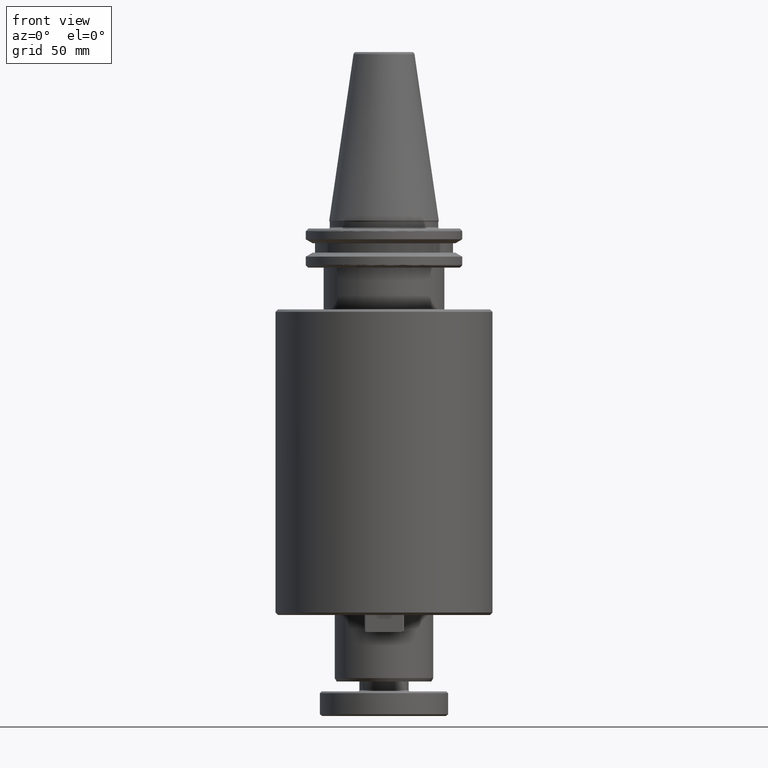
[diagram: clean part render]
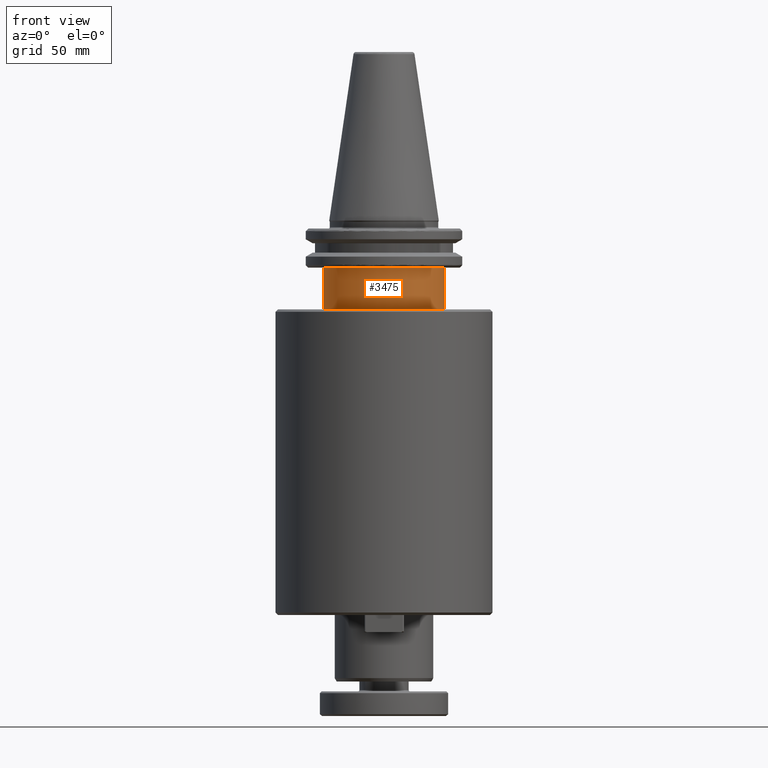
[diagram: same view with one face highlighted and labeled with its STEP entity id]
A machine part, front view. The second image highlights one B-rep face of the part: STEP entity #3475.
In plain terms, the highlighted cylindrical surface (partial cylindrical patch) has radius 24.5 mm, axis along (0, 0, 1).
Its self-contained STEP definition (entity closure, byte-faithful):
#204 = CARTESIAN_POINT ( 'NONE',  ( 24.50000000000000000, 0.0000000000000000000, -19.10000000000000500 ) ) ;
#216 = CARTESIAN_POINT ( 'NONE',  ( 0.0000000000000000000, 0.0000000000000000000, 82.95681253582424100 ) ) ;
#266 = CIRCLE ( 'NONE', #317, 24.50000000000000000 ) ;
#308 = VERTEX_POINT ( 'NONE', #1469 ) ;
#317 = AXIS2_PLACEMENT_3D ( 'NONE', #1324, #1320, #1314 ) ;
#515 = DIRECTION ( 'NONE',  ( 0.0000000000000000000, 0.0000000000000000000, 1.000000000000000000 ) ) ;
#558 = EDGE_CURVE ( 'NONE', #308, #3929, #4140, .T. ) ;
#584 = LINE ( 'NONE', #3132, #3155 ) ;
#903 = DIRECTION ( 'NONE',  ( 0.0000000000000000000, 0.0000000000000000000, 1.000000000000000000 ) ) ;
#1094 = ORIENTED_EDGE ( 'NONE', *, *, #3238, .T. ) ;
#1119 = CARTESIAN_POINT ( 'NONE',  ( -24.50000000000000000, 3.000384657911015500E-015, 82.95681253582424100 ) ) ;
#1227 = CYLINDRICAL_SURFACE ( 'NONE', #1579, 24.50000000000000000 ) ;
#1247 = EDGE_CURVE ( 'NONE', #2223, #3929, #3362, .T. ) ;
#1314 = DIRECTION ( 'NONE',  ( 1.000000000000000000, 0.0000000000000000000, 0.0000000000000000000 ) ) ;
#1320 = DIRECTION ( 'NONE',  ( 0.0000000000000000000, 0.0000000000000000000, 1.000000000000000000 ) ) ;
#1324 = CARTESIAN_POINT ( 'NONE',  ( 0.0000000000000000000, 0.0000000000000000000, -36.00000000000000700 ) ) ;
#1366 = AXIS2_PLACEMENT_3D ( 'NONE', #2265, #2264, #2260 ) ;
#1403 = CARTESIAN_POINT ( 'NONE',  ( -24.50000000000000000, 3.000384657911015500E-015, -19.10000000000000500 ) ) ;
#1469 = CARTESIAN_POINT ( 'NONE',  ( -24.50000000000000000, 3.000384657911015500E-015, -36.00000000000000700 ) ) ;
#1471 = VERTEX_POINT ( 'NONE', #1784 ) ;
#1579 = AXIS2_PLACEMENT_3D ( 'NONE', #216, #903, #3547 ) ;
#1629 = EDGE_CURVE ( 'NONE', #308, #1471, #266, .T. ) ;
#1784 = CARTESIAN_POINT ( 'NONE',  ( 24.50000000000000000, 0.0000000000000000000, -36.00000000000000700 ) ) ;
#1809 = FACE_OUTER_BOUND ( 'NONE', #3070, .T. ) ;
#2223 = VERTEX_POINT ( 'NONE', #204 ) ;
#2260 = DIRECTION ( 'NONE',  ( 1.000000000000000000, 0.0000000000000000000, 0.0000000000000000000 ) ) ;
#2264 = DIRECTION ( 'NONE',  ( -0.0000000000000000000, -0.0000000000000000000, -1.000000000000000000 ) ) ;
#2265 = CARTESIAN_POINT ( 'NONE',  ( 0.0000000000000000000, 0.0000000000000000000, -19.10000000000000500 ) ) ;
#2961 = ORIENTED_EDGE ( 'NONE', *, *, #558, .F. ) ;
#3070 = EDGE_LOOP ( 'NONE', ( #2961, #3209, #1094, #3517 ) ) ;
#3132 = CARTESIAN_POINT ( 'NONE',  ( 24.50000000000000000, 0.0000000000000000000, 82.95681253582424100 ) ) ;
#3155 = VECTOR ( 'NONE', #3453, 1000.000000000000000 ) ;
#3209 = ORIENTED_EDGE ( 'NONE', *, *, #1629, .T. ) ;
#3238 = EDGE_CURVE ( 'NONE', #1471, #2223, #584, .T. ) ;
#3362 = CIRCLE ( 'NONE', #1366, 24.50000000000000000 ) ;
#3453 = DIRECTION ( 'NONE',  ( 0.0000000000000000000, 0.0000000000000000000, 1.000000000000000000 ) ) ;
#3475 = ADVANCED_FACE ( 'NONE', ( #1809 ), #1227, .T. ) ;
#3517 = ORIENTED_EDGE ( 'NONE', *, *, #1247, .T. ) ;
#3547 = DIRECTION ( 'NONE',  ( 1.000000000000000000, 0.0000000000000000000, 0.0000000000000000000 ) ) ;
#3929 = VERTEX_POINT ( 'NONE', #1403 ) ;
#4140 = LINE ( 'NONE', #1119, #4179 ) ;
#4179 = VECTOR ( 'NONE', #515, 1000.000000000000000 ) ;